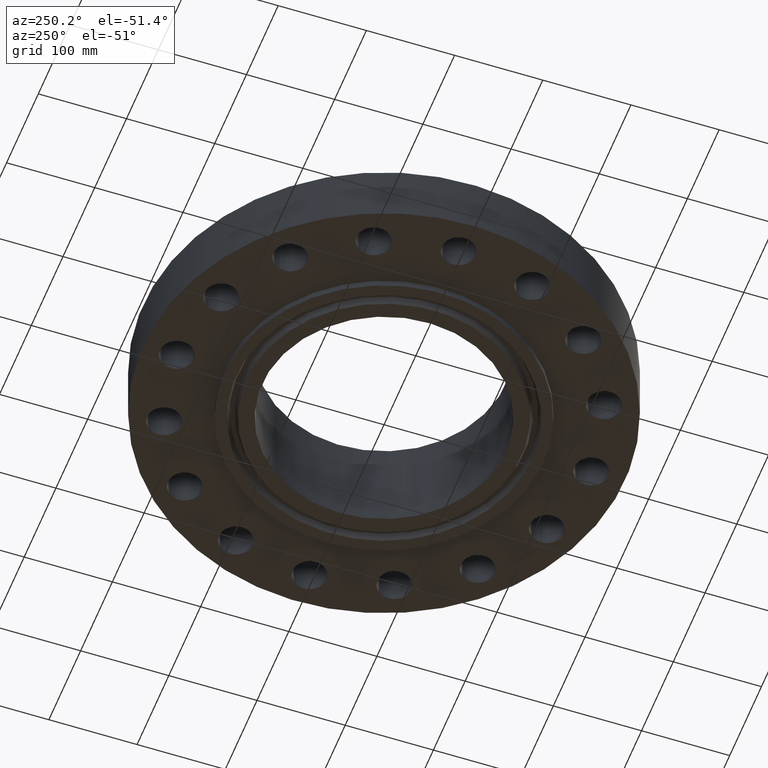
[diagram: clean part render]
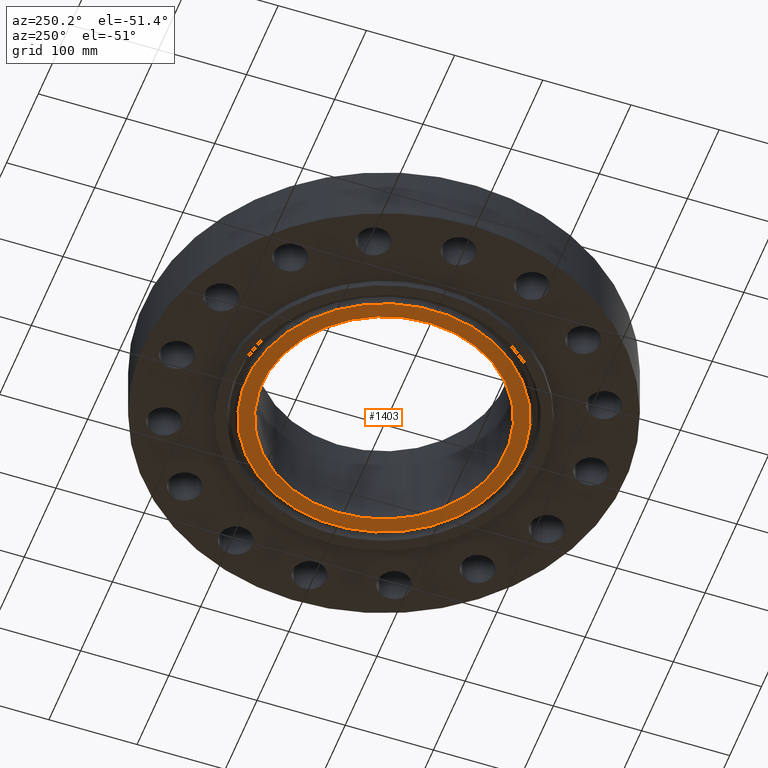
[diagram: same view with one face highlighted and labeled with its STEP entity id]
A machine part, auxiliary view. The second image highlights one B-rep face of the part: STEP entity #1403.
In plain terms, the highlighted planar face has unit normal (0, 0, -1).
Its self-contained STEP definition (entity closure, byte-faithful):
#334=AXIS2_PLACEMENT_3D('Circle Axis2P3D',#332,#333,$) ;
#353=AXIS2_PLACEMENT_3D('Circle Axis2P3D',#351,#352,$) ;
#1356=AXIS2_PLACEMENT_3D('Plane Axis2P3D',#1353,#1354,#1355) ;
#1383=AXIS2_PLACEMENT_3D('Circle Axis2P3D',#1381,#1382,$) ;
#1392=AXIS2_PLACEMENT_3D('Circle Axis2P3D',#1390,#1391,$) ;
#329=CARTESIAN_POINT('Vertex',(2.60807493002,4.7740491367,-0.312500000001)) ;
#332=CARTESIAN_POINT('Axis2P3D Location',(0.,0.,-0.312500000001)) ;
#336=CARTESIAN_POINT('Vertex',(-2.60807493002,-4.7740491367,-0.312500000001)) ;
#351=CARTESIAN_POINT('Axis2P3D Location',(0.,0.,-0.312500000001)) ;
#1353=CARTESIAN_POINT('Axis2P3D Location',(0.,5.44000000002,-0.312500000001)) ;
#1381=CARTESIAN_POINT('Axis2P3D Location',(-1.1189649382E-015,1.1189649382E-015,-0.312500000001)) ;
#1385=CARTESIAN_POINT('Vertex',(-2.94396046236,5.38888347957,-0.312500000001)) ;
#1387=CARTESIAN_POINT('Vertex',(2.94396046236,-5.38888347957,-0.312500000001)) ;
#1390=CARTESIAN_POINT('Axis2P3D Location',(0.,0.,-0.312500000001)) ;
#333=DIRECTION('Axis2P3D Direction',(0.,0.,-0.0393700787402)) ;
#352=DIRECTION('Axis2P3D Direction',(0.,0.,-0.0393700787402)) ;
#1354=DIRECTION('Axis2P3D Direction',(0.,0.,-0.0393700787402)) ;
#1355=DIRECTION('Axis2P3D XDirection',(0.0393700787402,0.,0.)) ;
#1382=DIRECTION('Axis2P3D Direction',(0.,0.,-0.0393700787402)) ;
#1391=DIRECTION('Axis2P3D Direction',(0.,0.,-0.0393700787402)) ;
#1396=ORIENTED_EDGE('',*,*,#1389,.T.) ;
#1397=ORIENTED_EDGE('',*,*,#1394,.T.) ;
#1400=ORIENTED_EDGE('',*,*,#338,.F.) ;
#1401=ORIENTED_EDGE('',*,*,#355,.F.) ;
#1402=FACE_BOUND('',#1399,.T.) ;
#1403=ADVANCED_FACE('PartBody',(#1398,#1402),#1357,.T.) ;
#335=CIRCLE('generated circle',#334,5.44000000002) ;
#354=CIRCLE('generated circle',#353,5.44000000002) ;
#1384=CIRCLE('generated circle',#1383,6.14060000002) ;
#1393=CIRCLE('generated circle',#1392,6.14060000002) ;
#338=EDGE_CURVE('',#330,#337,#335,.T.) ;
#355=EDGE_CURVE('',#337,#330,#354,.T.) ;
#1389=EDGE_CURVE('',#1386,#1388,#1384,.T.) ;
#1394=EDGE_CURVE('',#1388,#1386,#1393,.T.) ;
#1395=EDGE_LOOP('',(#1396,#1397)) ;
#1399=EDGE_LOOP('',(#1400,#1401)) ;
#1398=FACE_OUTER_BOUND('',#1395,.T.) ;
#1357=PLANE('',#1356) ;
#330=VERTEX_POINT('',#329) ;
#337=VERTEX_POINT('',#336) ;
#1386=VERTEX_POINT('',#1385) ;
#1388=VERTEX_POINT('',#1387) ;